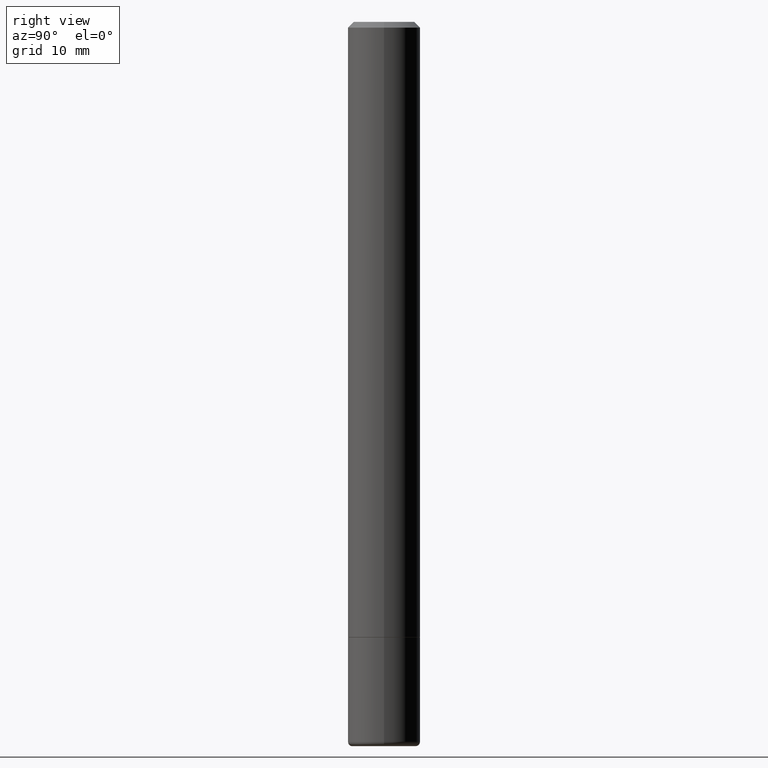
[diagram: clean part render]
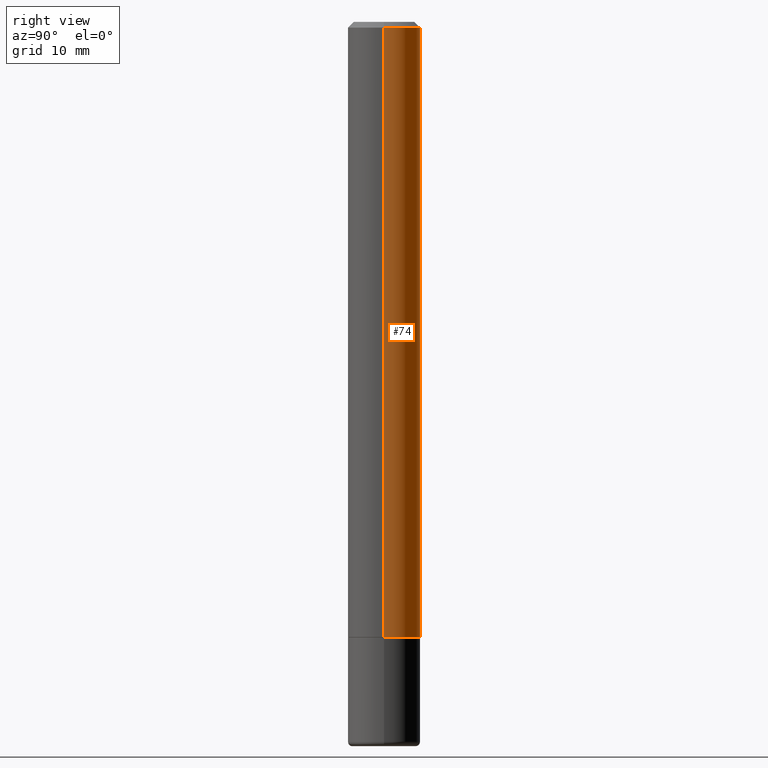
[diagram: same view with one face highlighted and labeled with its STEP entity id]
A machine part, right view. The second image highlights one B-rep face of the part: STEP entity #74.
In plain terms, the highlighted cylindrical surface (edge-blend (fillet) strip) has radius 3.175 mm, axis along (-0, 0, 1).
Its self-contained STEP definition (entity closure, byte-faithful):
#35 = CARTESIAN_POINT ( 'NONE',  ( -0.1249999999999993477, 8.030407079339155047E-16, -0.02000000000000009062 ) ) ;
#36 = LINE ( 'NONE', #185, #266 ) ;
#37 = FACE_OUTER_BOUND ( 'NONE', #390, .T. ) ;
#40 = CYLINDRICAL_SURFACE ( 'NONE', #231, 0.1249999999999994865 ) ;
#43 = CARTESIAN_POINT ( 'NONE',  ( -0.1249999999999994865, 8.881784197001215839E-16, -6.148668862818606303E-30 ) ) ;
#54 = ORIENTED_EDGE ( 'NONE', *, *, #455, .T. ) ;
#68 = CARTESIAN_POINT ( 'NONE',  ( 5.194175744337230786E-29, -7.415906363702842194E-15, -2.124000000000000554 ) ) ;
#74 = ADVANCED_FACE ( 'NONE', ( #37 ), #40, .T. ) ;
#76 = CIRCLE ( 'NONE', #215, 0.1249999999999993477 ) ;
#100 = VERTEX_POINT ( 'NONE', #402 ) ;
#113 = ORIENTED_EDGE ( 'NONE', *, *, #448, .F. ) ;
#134 = VERTEX_POINT ( 'NONE', #486 ) ;
#137 = CARTESIAN_POINT ( 'NONE',  ( 0.1249999999999996253, -8.288776698413623955E-15, -2.124000000000000554 ) ) ;
#140 = DIRECTION ( 'NONE',  ( -2.445468806185136597E-29, 3.491481338843145583E-15, 1.000000000000000000 ) ) ;
#146 = DIRECTION ( 'NONE',  ( -2.445468806185136877E-29, 3.491481338843145188E-15, 1.000000000000000000 ) ) ;
#150 = EDGE_CURVE ( 'NONE', #358, #134, #36, .T. ) ;
#185 = CARTESIAN_POINT ( 'NONE',  ( 0.1249999999999994865, -8.728703347107796903E-16, 6.095220969744894518E-30 ) ) ;
#191 = CARTESIAN_POINT ( 'NONE',  ( 0.000000000000000000, 0.000000000000000000, 0.000000000000000000 ) ) ;
#195 = DIRECTION ( 'NONE',  ( -2.445468806185136877E-29, 3.491481338843145188E-15, 1.000000000000000000 ) ) ;
#202 = DIRECTION ( 'NONE',  ( -2.445468806185136597E-29, 3.491481338843145583E-15, 1.000000000000000000 ) ) ;
#204 = ORIENTED_EDGE ( 'NONE', *, *, #389, .T. ) ;
#215 = AXIS2_PLACEMENT_3D ( 'NONE', #303, #202, #385 ) ;
#231 = AXIS2_PLACEMENT_3D ( 'NONE', #191, #341, #422 ) ;
#232 = CIRCLE ( 'NONE', #300, 0.1249999999999996253 ) ;
#245 = VECTOR ( 'NONE', #195, 39.37007874015748143 ) ;
#266 = VECTOR ( 'NONE', #146, 39.37007874015748143 ) ;
#271 = ORIENTED_EDGE ( 'NONE', *, *, #150, .F. ) ;
#300 = AXIS2_PLACEMENT_3D ( 'NONE', #68, #140, #339 ) ;
#303 = CARTESIAN_POINT ( 'NONE',  ( 4.890937612370295054E-31, -6.982962677686322424E-17, -0.02000000000000009062 ) ) ;
#324 = VERTEX_POINT ( 'NONE', #35 ) ;
#339 = DIRECTION ( 'NONE',  ( 1.000000000000000000, -6.982962677686269077E-15, 0.000000000000000000 ) ) ;
#341 = DIRECTION ( 'NONE',  ( -2.445468806185136597E-29, 3.491481338843145583E-15, 1.000000000000000000 ) ) ;
#358 = VERTEX_POINT ( 'NONE', #137 ) ;
#385 = DIRECTION ( 'NONE',  ( 1.000000000000000000, -6.982962677686265922E-15, 0.000000000000000000 ) ) ;
#389 = EDGE_CURVE ( 'NONE', #358, #100, #232, .T. ) ;
#390 = EDGE_LOOP ( 'NONE', ( #204, #54, #113, #271 ) ) ;
#402 = CARTESIAN_POINT ( 'NONE',  ( -0.1249999999999996253, -2.854689575539726725E-15, -2.124000000000000554 ) ) ;
#422 = DIRECTION ( 'NONE',  ( 1.000000000000000000, -6.982962677686265922E-15, 4.876176775795935793E-29 ) ) ;
#425 = LINE ( 'NONE', #43, #245 ) ;
#448 = EDGE_CURVE ( 'NONE', #134, #324, #76, .T. ) ;
#455 = EDGE_CURVE ( 'NONE', #100, #324, #425, .T. ) ;
#486 = CARTESIAN_POINT ( 'NONE',  ( 0.1249999999999993477, -9.273918764983002075E-16, -0.02000000000000009062 ) ) ;